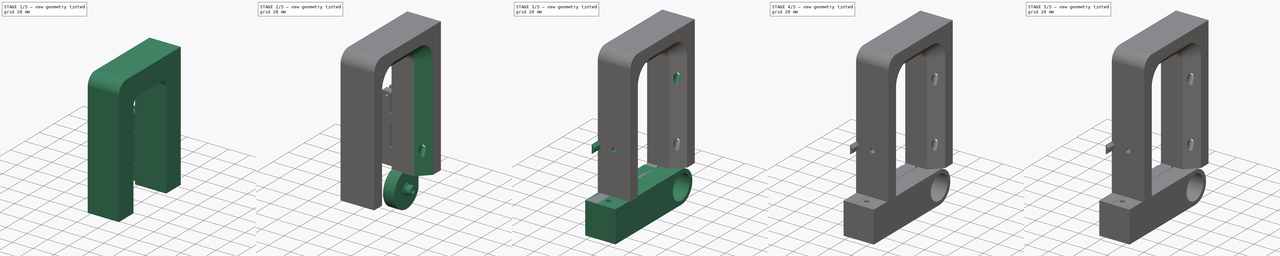
[diagram: build sequence overview — one tinted view per stage of 5, left to right]
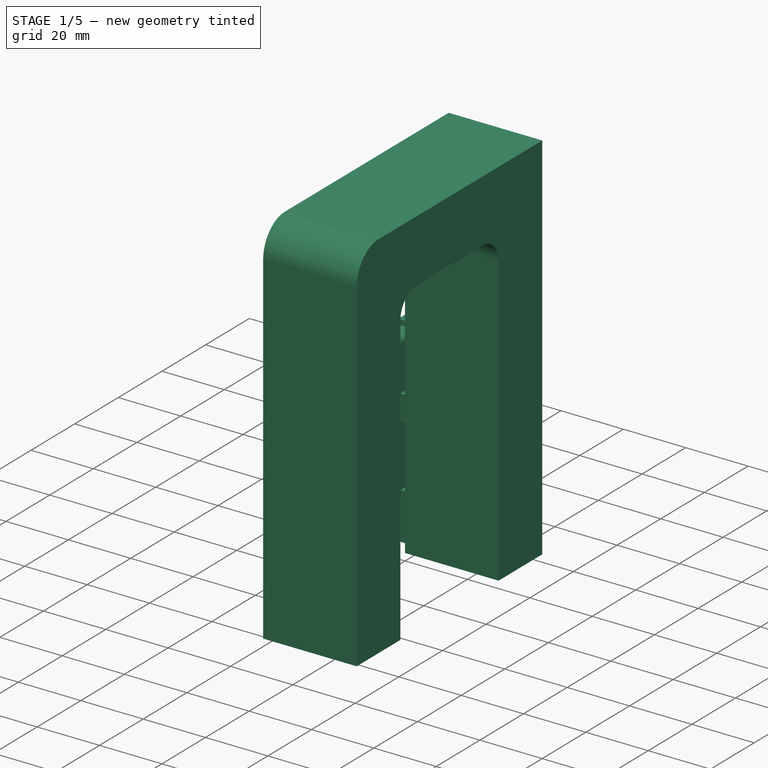
[diagram: stage 1 of 5 — iso view after this stage's code; geometry added in this stage tinted green]
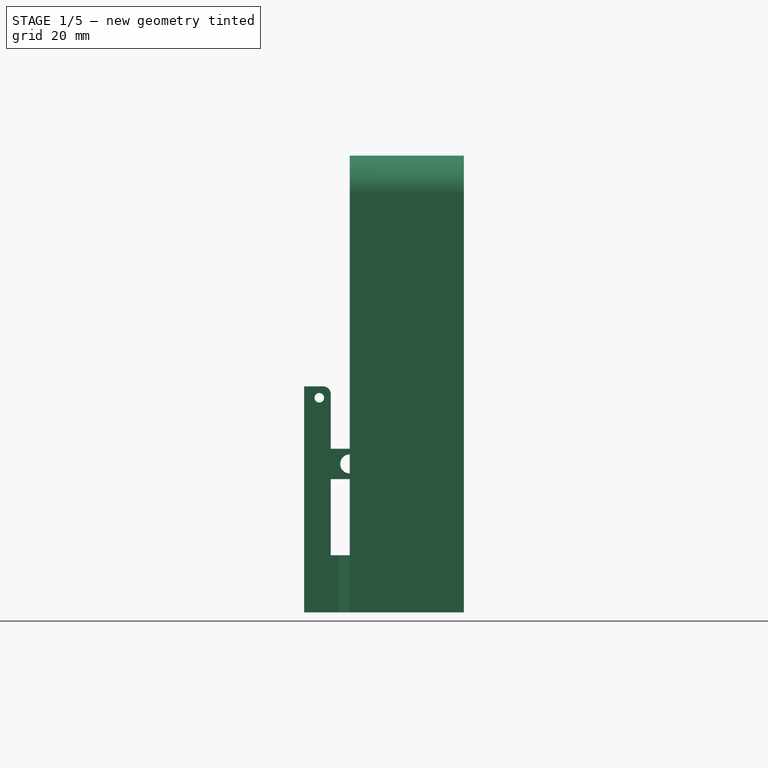
[diagram: stage 1 of 5 — front view after this stage's code; geometry added in this stage tinted green]
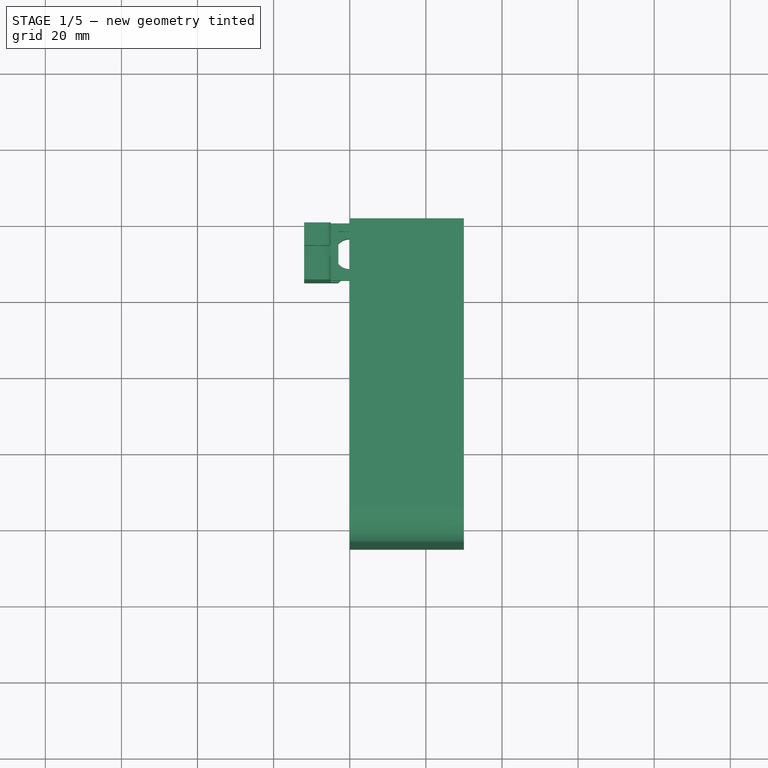
[diagram: stage 1 of 5 — top view after this stage's code; geometry added in this stage tinted green]
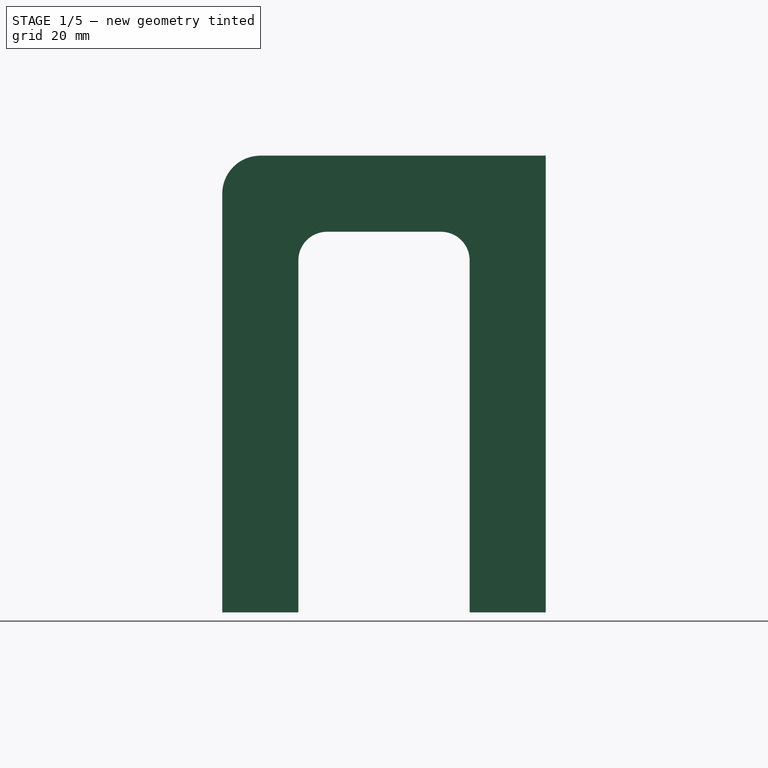
[diagram: stage 1 of 5 — right view after this stage's code; geometry added in this stage tinted green]
FCSTD DOCUMENT  (FreeCAD 0.21R33771 (Git))
Label: DropShot
License: All rights reserved
LicenseURL: http://en.wikipedia.org/wiki/All_rights_reserved
objects: Sketcher::SketchObject×15, PartDesign::Pad×11, PartDesign::SubtractiveCylinder×10, PartDesign::ShapeBinder×6, PartDesign::Body×6, PartDesign::Pocket×4, PartDesign::Chamfer×3, PartDesign::SubtractiveBox×3, App::Part×2, Spreadsheet::Sheet×1, PartDesign::SubShapeBinder×1
note: 90 computed .brp shape members not serialized (recipe doc carries the construction recipe); baked Part::Feature solids carry a one-line shape summary decoded from their .brp

FEATURE [Spreadsheet::Sheet] Spreadsheet  label="Values"
  cells = A2='ShotHeight; B2(ShotHeight)=100; A3='ShotWidth; B3(ShotWidth)=45; A4='HolderWidth; B4(HolderWidth)=30; A5='HolderHeight; B5(HolderHeight)=20
FEATURE [Sketcher::SketchObject] Sketch
  FullyConstrained = true
  MapMode = 5
  Placement = pos=(0,0,0) rot=(0.57735,0.57735,0.57735;2.0944rad)
  Support = -> [YZ_Plane001]
  expr: Constraints[15] = <<Values>>.ShotWidth
  expr: Constraints[16] = <<Values>>.ShotWidth + 2 * <<Values>>.HolderHeight
  expr: Constraints[17] = <<Values>>.HolderHeight
  expr: Constraints[18] = <<Values>>.HolderHeight
  expr: Constraints[19] = <<Values>>.ShotHeight
  expr: Constraints[32] = <<Values>>.ShotWidth + 2 * <<Values>>.HolderHeight - 10
  expr: Constraints[34] = <<Values>>.ShotWidth - 15
  sketch-geometry (14):
    g0: LineSegment StartX=-20 StartY=0 StartZ=0 EndX=0 EndY=0 EndZ=0
    g1: LineSegment StartX=0 StartY=0 StartZ=0 EndX=0 EndY=120 EndZ=0
    g2: LineSegment StartX=0 StartY=120 StartZ=0 EndX=-75 EndY=120 EndZ=0
    g3: LineSegment StartX=-85 StartY=110 StartZ=0 EndX=-85 EndY=0 EndZ=0
    g4: LineSegment StartX=-85 StartY=0 StartZ=0 EndX=-65 EndY=0 EndZ=0
    g5: LineSegment StartX=-65 StartY=0 StartZ=0 EndX=-65 EndY=92.5 EndZ=0
    g6: LineSegment StartX=-57.5 StartY=100 StartZ=0 EndX=-27.5 EndY=100 EndZ=0
    g7: LineSegment StartX=-20 StartY=92.5 StartZ=0 EndX=-20 EndY=0 EndZ=0
    g8: ArcOfCircle CenterX=-75 CenterY=110 CenterZ=0 NormalX=0 NormalY=0 NormalZ=1 AngleXU=0 Radius=10 StartAngle=1.5708 EndAngle=3.14159
    g9: GeomPoint X=-85 Y=120 Z=0
    g10: ArcOfCircle CenterX=-57.5 CenterY=92.5 CenterZ=0 NormalX=0 NormalY=0 NormalZ=1 AngleXU=0 Radius=7.5 StartAngle=1.5708 EndAngle=3.14159
    g11: GeomPoint X=-65 Y=100 Z=0
    g12: ArcOfCircle CenterX=-27.5 CenterY=92.5 CenterZ=0 NormalX=0 NormalY=0 NormalZ=1 AngleXU=0 Radius=7.5 StartAngle=-9e-16 EndAngle=1.5708
    g13: GeomPoint X=-20 Y=100 Z=0
  constraints (35):
    c: PointOnObject(g0,g-1)
    c: Coincident(g0,g-1)
    c: Coincident(g0,g1)
    c: PointOnObject(g1,g-2)
    c: Coincident(g1,g2)
    c: Horizontal(g2)
    c: PointOnObject(g3,g-1)
    c: Vertical(g3)
    c: Coincident(g3,g4)
    c: PointOnObject(g4,g-1)
    c: Coincident(g4,g5)
    c: Vertical(g5)
    c: Horizontal(g6)
    c: Coincident(g7,g0)
    c: Vertical(g7)
    c: DistanceX(g11,g13) = 45
    c: DistanceX(g9,g2) = 85
    c: DistanceX(g3,g4) = 20
    c: DistanceY(g13,g1) = 20
    c: DistanceY(g7,g13) = 100
    c: PointOnObject(g9,g2)
    c: PointOnObject(g9,g3)
    c: Tangent(g2,g8) = -1.5708
    c: Tangent(g3,g8) = -1.5708
    c: PointOnObject(g11,g5)
    c: PointOnObject(g11,g6)
    c: Tangent(g5,g10) = 1.5708
    c: Tangent(g6,g10) = 1.5708
    c: PointOnObject(g13,g6)
    c: PointOnObject(g13,g7)
    c: Tangent(g6,g12) = 1.5708
    c: Tangent(g7,g12) = 1.5708
    c: DistanceX(g8,g1) = 75
    c: Horizontal(g12,g10)
    c: DistanceX(g10,g12) = 30
FEATURE [PartDesign::Pad] Pad
  Direction = (1,-2e-16,3e-16)
  Length = 30
  Length2 = 10
  Placement = pos=(0,0,0) rot=(0.57735,0.57735,0.57735;2.0944rad)
  Profile = -> Sketch
  ReferenceAxis = -> Sketch [N_Axis]
  Type = 0
  expr: Length = <<Values>>.HolderWidth
FEATURE [Sketcher::SketchObject] Sketch009
  FullyConstrained = true
  MapMode = 5
  Placement = pos=(0,0,0) rot=(1,0,0;1.5708rad)
  Support = -> [XZ_Plane005]
  sketch-geometry (13):
    g0: LineSegment StartX=-12 StartY=59.38 StartZ=0 EndX=-12 EndY=0 EndZ=0
    g1: LineSegment StartX=-12 StartY=0 StartZ=0 EndX=0 EndY=0 EndZ=0
    g2: LineSegment StartX=0 StartY=0 StartZ=0 EndX=0 EndY=15 EndZ=0
    g3: LineSegment StartX=0 StartY=15 StartZ=0 EndX=-5 EndY=15 EndZ=0
    g4: LineSegment StartX=-5 StartY=15 StartZ=0 EndX=-5 EndY=35 EndZ=0
    g5: LineSegment StartX=-5 StartY=43 StartZ=0 EndX=-5 EndY=57.38 EndZ=0
    g6: LineSegment StartX=-7 StartY=59.38 StartZ=0 EndX=-12 EndY=59.38 EndZ=0
    g7: LineSegment StartX=-5 StartY=43 StartZ=0 EndX=-2.7e-15 EndY=43 EndZ=0
    g8: ArcOfCircle CenterX=0 CenterY=39 CenterZ=0 NormalX=0 NormalY=0 NormalZ=1 AngleXU=0 Radius=4 StartAngle=4.71239 EndAngle=7.85398
    g9: Circle CenterX=0 CenterY=39 CenterZ=0 NormalX=0 NormalY=0 NormalZ=1 AngleXU=0 Radius=2.5
    g10: Circle CenterX=-8 CenterY=56.38 CenterZ=0 NormalX=0 NormalY=0 NormalZ=1 AngleXU=0 Radius=1.25
    g11: ArcOfCircle CenterX=-7 CenterY=57.38 CenterZ=0 NormalX=0 NormalY=0 NormalZ=1 AngleXU=0 Radius=2 StartAngle=2.9e-15 EndAngle=1.5708
    g12: LineSegment StartX=-5 StartY=35 StartZ=0 EndX=-2.7e-15 EndY=35 EndZ=0
  constraints (37):
    c: Vertical(g0)
    c: Coincident(g0,g1)
    c: Horizontal(g1)
    c: Coincident(g1,g2)
    c: Vertical(g2)
    c: Coincident(g2,g3)
    c: Coincident(g3,g4)
    c: Vertical(g4)
    c: Vertical(g5)
    c: Coincident(g6,g0)
    c: Horizontal(g6)
    c: Horizontal(g3)
    c: Coincident(g7,g5)
    c: Horizontal(g7)
    c: Tangent(g8,g7) = 1.5708
    c: Vertical(g2,g8)
    c: Coincident(g9,g8)
    c: Diameter(g9) = 5
    c: Diameter(g10) = 2.5
    c: Tangent(g5,g11) = -1.5708
    c: Tangent(g6,g11) = -1.5708
    c: Vertical(g5,g4)
    c: DistanceX(g10,g5) = 3
    c: DistanceY(g10,g6) = 3
    c: Coincident(g12,g4)
    c: Coincident(g12,g8)
    c: Horizontal(g12)
    c: DistanceY(g3,g4) = 20
    c: DistanceY(g4,g5) = 8
    c: DistanceY(g5,g6) = 16.38
    c: DistanceX(g1,g1) = 12
    c: DistanceX(g0,g5) = 7
    c: Vertical(g7,g8)
    c: DistanceX(g0,g6) = 5
    c: Horizontal(g1,g-1)
    c: DistanceX(g1,g-1) = 0
    c: DistanceY(g2,g2) = 15
FEATURE [PartDesign::Pad] Pad007
  Direction = (0,-1,-2e-16)
  Length = 15
  Length2 = 10
  Placement = pos=(0,0,0) rot=(1,0,0;1.5708rad)
  Profile = -> Sketch009
  ReferenceAxis = -> Sketch009 [N_Axis]
  Type = 0
FEATURE [PartDesign::SubtractiveCylinder] Cylinder002
  Angle = 360
  AttacherType = Attacher::AttachEngine3D
  AttachmentOffset = pos=(0,-7.5,0) rot=(0,0,1;0rad)
  BaseFeature = -> Pad007
  FirstAngle = 0
  Height = 27
  MapMode = 5
  Placement = pos=(0,-7.5,0) rot=(0,0,1;0rad)
  Radius = 4
  SecondAngle = 0
  Support = -> [XY_Plane005]
FEATURE [PartDesign::Chamfer] Chamfer001
  Angle = 45
  Base = -> Cylinder002 [Edge24]
  BaseFeature = -> Cylinder002
  ChamferType = 1
  FlipDirection = false
  Placement = pos=(0,-7.5,0) rot=(0,0,1;0rad)
  Size = 3
  Size2 = 3
  SupportTransform = false
  UseAllEdges = false
FEATURE [PartDesign::SubtractiveBox] Box
  AttacherType = Attacher::AttachEngine3D
  AttachmentOffset = pos=(-12.1,34,-3) rot=(0,0,1;0rad)
  BaseFeature = -> Chamfer001
  Height = 10
  Length = 10
  MapMode = 5
  Placement = pos=(-3,-12.1,34) rot=(0.57735,0.57735,0.57735;2.0944rad)
  Support = -> [YZ_Plane005]
  Width = 10.2
FEATURE [PartDesign::SubtractiveCylinder] Cylinder003
  Angle = 360
  AttacherType = Attacher::AttachEngine3D
  AttachmentOffset = pos=(-8,56,6) rot=(0,0,1;0rad)
  BaseFeature = -> Box
  FirstAngle = 0
  Height = 3
  MapMode = 5
  Placement = pos=(-8,-6,56) rot=(1,0,0;1.5708rad)
  Radius = 7
  SecondAngle = 0
  Support = -> [XZ_Plane005]
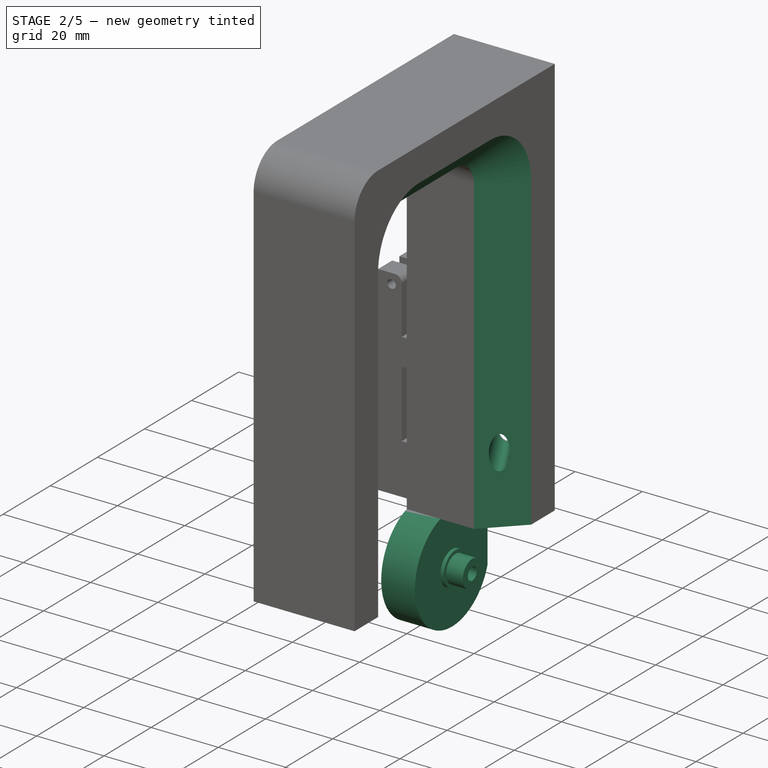
[diagram: stage 2 of 5 — iso view after this stage's code; geometry added in this stage tinted green]
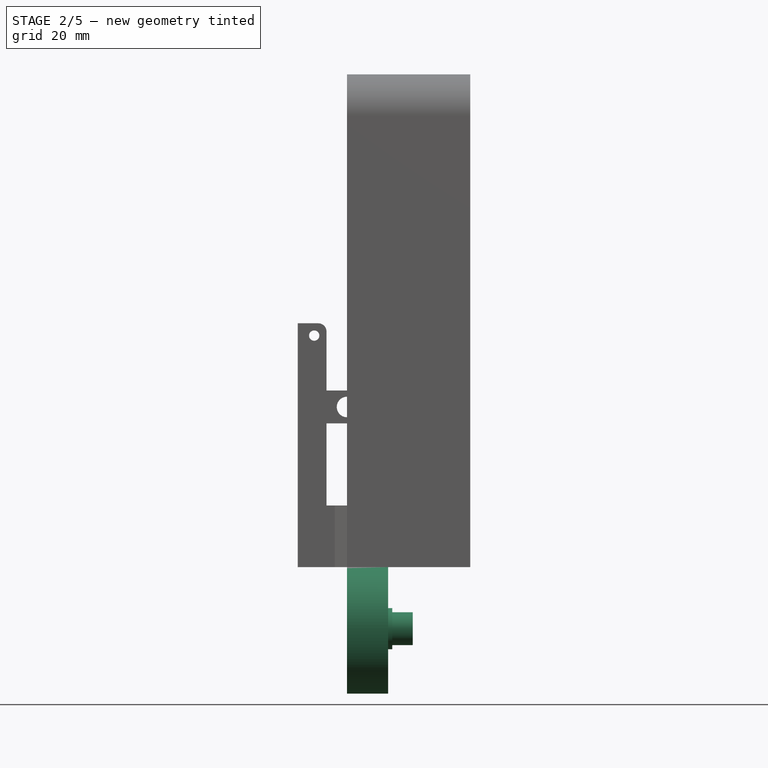
[diagram: stage 2 of 5 — front view after this stage's code; geometry added in this stage tinted green]
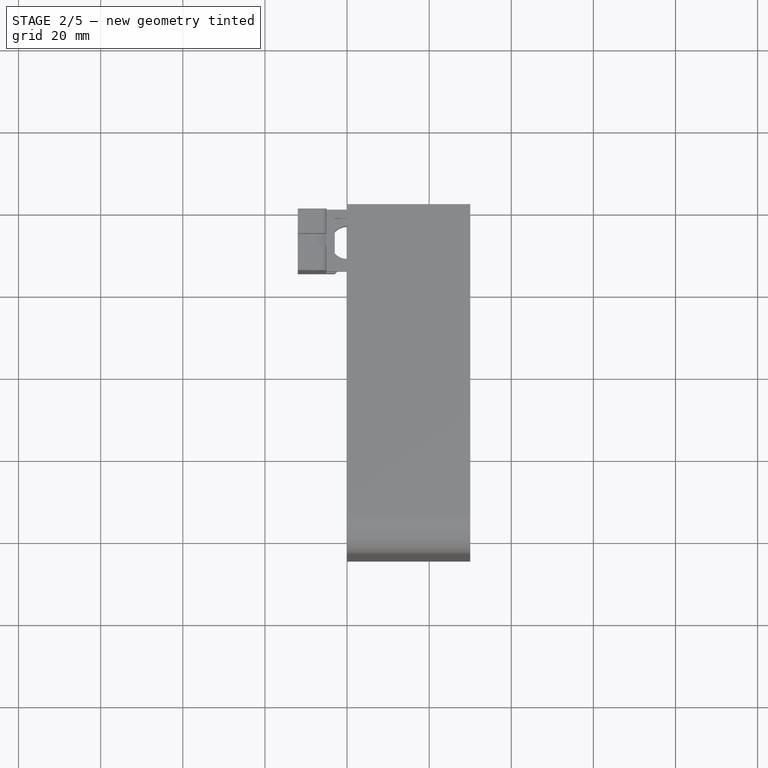
[diagram: stage 2 of 5 — top view after this stage's code; geometry added in this stage tinted green]
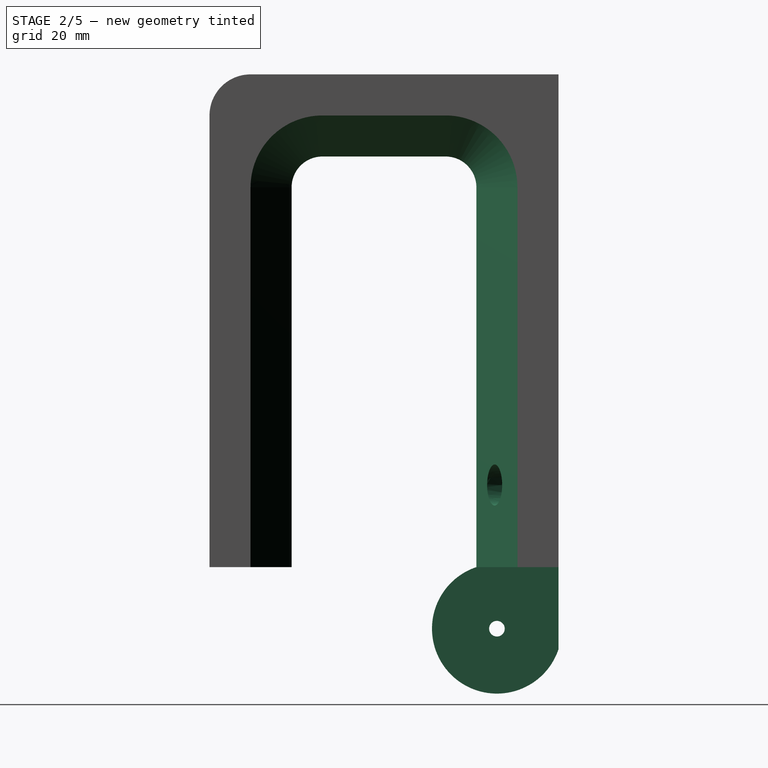
[diagram: stage 2 of 5 — right view after this stage's code; geometry added in this stage tinted green]
FEATURE [Sketcher::SketchObject] Sketch001
  FullyConstrained = true
  MapMode = 5
  Placement = pos=(0,0,0) rot=(0.57735,0.57735,0.57735;2.0944rad)
  Support = -> [YZ_Plane001]
  sketch-geometry (2):
    g0: Circle CenterX=-15 CenterY=-15 CenterZ=0 NormalX=0 NormalY=0 NormalZ=1 AngleXU=0 Radius=4
    g1: Circle CenterX=-15 CenterY=-15 CenterZ=0 NormalX=0 NormalY=0 NormalZ=1 AngleXU=0 Radius=11
  constraints (5):
    c: Diameter(g0) = 8
    c: Coincident(g1,g0)
    c: Diameter(g1) = 22
    c: DistanceX(g0,g-1) = 15
    c: DistanceY(g0,g-1) = 15
FEATURE [Sketcher::SketchObject] Sketch002
  ExternalGeometry = -> [Sketch001,Pad]
  FullyConstrained = true
  MapMode = 5
  Placement = pos=(0,0,0) rot=(0.57735,0.57735,0.57735;2.0944rad)
  Support = -> [YZ_Plane001]
  sketch-geometry (4):
    g0: Circle CenterX=-15 CenterY=-15 CenterZ=0 NormalX=0 NormalY=0 NormalZ=1 AngleXU=0 Radius=11
    g1: ArcOfCircle CenterX=-15 CenterY=-15 CenterZ=0 NormalX=0 NormalY=0 NormalZ=1 AngleXU=0 Radius=15.8114 StartAngle=1.89255 EndAngle=5.96143
    g2: LineSegment StartX=0 StartY=-20 StartZ=0 EndX=0 EndY=0 EndZ=0
    g3: LineSegment StartX=0 StartY=0 StartZ=0 EndX=-20 EndY=1.42e-14 EndZ=0
  constraints (9):
    c: Coincident(g0,g-3)
    c: Diameter(g0) = 22
    c: Coincident(g1,g0)
    c: Coincident(g1,g-5)
    c: PointOnObject(g1,g-2)
    c: Coincident(g2,g1)
    c: Coincident(g2,g-1)
    c: Coincident(g3,g2)
    c: Coincident(g3,g1)
FEATURE [PartDesign::Pad] Pad001
  BaseFeature = -> Pad
  Direction = (1,-2e-16,3e-16)
  Length = 10
  Length2 = 10
  Placement = pos=(0,0,0) rot=(0.57735,0.57735,0.57735;2.0944rad)
  Profile = -> Sketch002
  ReferenceAxis = -> Sketch002 [N_Axis]
  Type = 0
FEATURE [PartDesign::Pad] Pad002
  BaseFeature = -> Pad001
  Direction = (1,-2e-16,3e-16)
  Length = 16
  Length2 = 10
  Placement = pos=(0,0,0) rot=(0.57735,0.57735,0.57735;2.0944rad)
  Profile = -> Sketch001
  ReferenceAxis = -> Sketch001 [N_Axis]
  Type = 0
FEATURE [Sketcher::SketchObject] Sketch003
  ExternalGeometry = -> [Pad002]
  FullyConstrained = true
  MapMode = 5
  Placement = pos=(0,0,0) rot=(0.57735,0.57735,0.57735;2.0944rad)
  Support = -> [YZ_Plane001]
  sketch-geometry (1):
    g0: Circle CenterX=-15 CenterY=-15 CenterZ=0 NormalX=0 NormalY=0 NormalZ=1 AngleXU=0 Radius=5
  constraints (2):
    c: Coincident(g0,g-3)
    c: Diameter(g0) = 10
FEATURE [PartDesign::Pad] Pad003
  BaseFeature = -> Pad002
  Direction = (1,-2e-16,3e-16)
  Length = 11
  Length2 = 10
  Placement = pos=(0,0,0) rot=(0.57735,0.57735,0.57735;2.0944rad)
  Profile = -> Sketch003
  ReferenceAxis = -> Sketch003 [N_Axis]
  Type = 0
FEATURE [Sketcher::SketchObject] Sketch004
  ExternalGeometry = -> [Pad003]
  FullyConstrained = true
  MapMode = 5
  Placement = pos=(0,0,0) rot=(0.57735,0.57735,0.57735;2.0944rad)
  Support = -> [YZ_Plane001]
  sketch-geometry (1):
    g0: Circle CenterX=-15 CenterY=-15 CenterZ=0 NormalX=0 NormalY=0 NormalZ=1 AngleXU=0 Radius=1.9
  constraints (2):
    c: Coincident(g0,g-3)
    c: Diameter(g0) = 3.8
FEATURE [PartDesign::Pocket] Pocket
  BaseFeature = -> Pad003
  Direction = (-1,2e-16,-3e-16)
  Length = 20
  Length2 = 5
  Placement = pos=(0,0,0) rot=(0.57735,0.57735,0.57735;2.0944rad)
  Profile = -> Sketch004
  ReferenceAxis = -> Sketch004 [N_Axis]
  Reversed = true
  Type = 0
FEATURE [PartDesign::Chamfer] Chamfer
  Angle = 45
  Base = -> Pocket [Edge5]
  BaseFeature = -> Pocket
  ChamferType = 0
  FlipDirection = false
  Placement = pos=(0,0,0) rot=(0.57735,0.57735,0.57735;2.0944rad)
  Size = 10
  Size2 = 1
  SupportTransform = false
  UseAllEdges = false
FEATURE [PartDesign::SubtractiveCylinder] Cylinder
  Angle = 360
  AttacherType = Attacher::AttachEngine3D
  AttachmentOffset = pos=(6,20,12) rot=(0,0,1;0rad)
  BaseFeature = -> Chamfer
  FirstAngle = -60
  Height = 101
  MapMode = 5
  Placement = pos=(12,6,20) rot=(0.57735,0.57735,0.57735;2.0944rad)
  Radius = 5
  SecondAngle = 0
  Support = -> [YZ_Plane001]
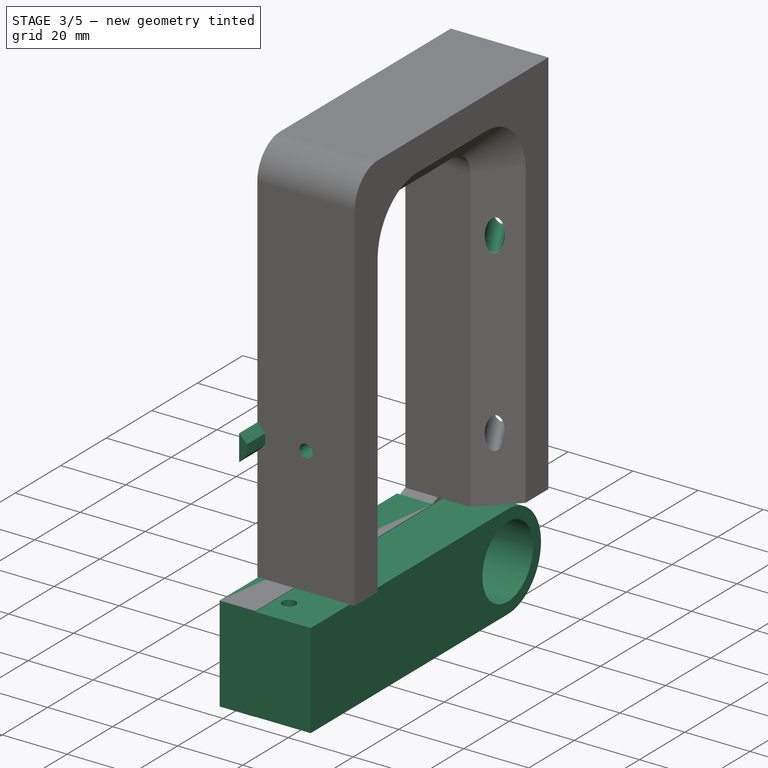
[diagram: stage 3 of 5 — iso view after this stage's code; geometry added in this stage tinted green]
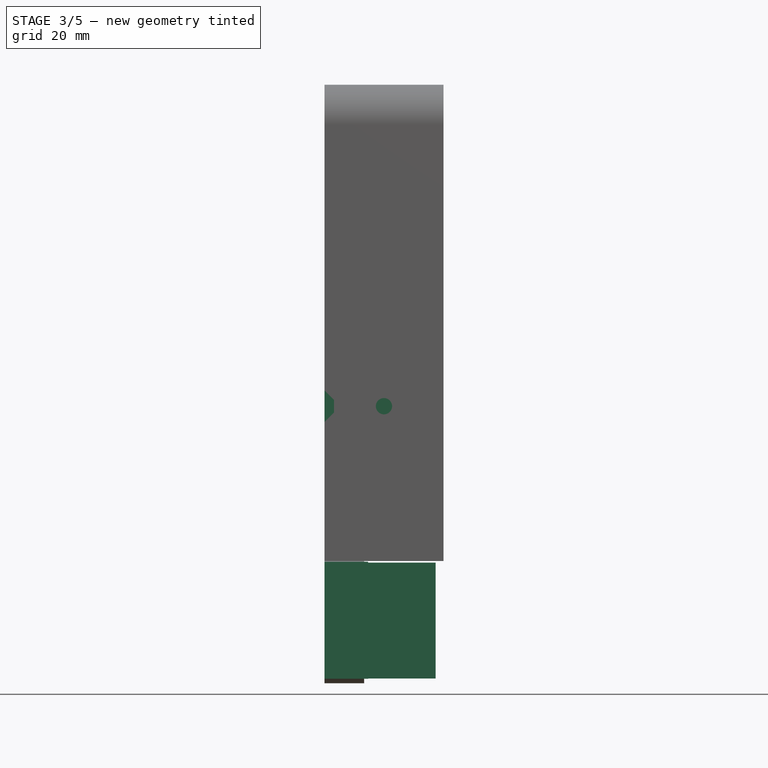
[diagram: stage 3 of 5 — front view after this stage's code; geometry added in this stage tinted green]
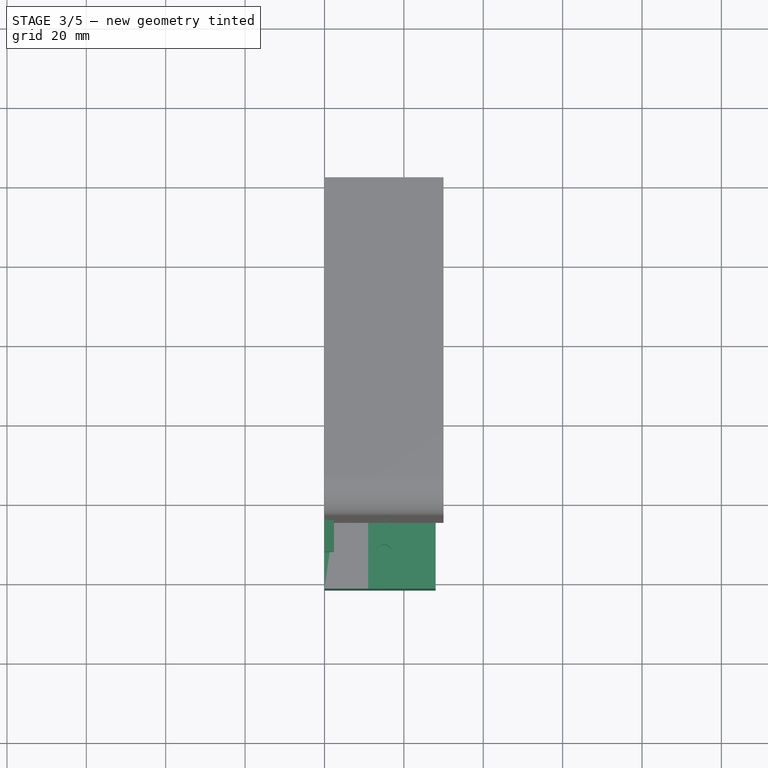
[diagram: stage 3 of 5 — top view after this stage's code; geometry added in this stage tinted green]
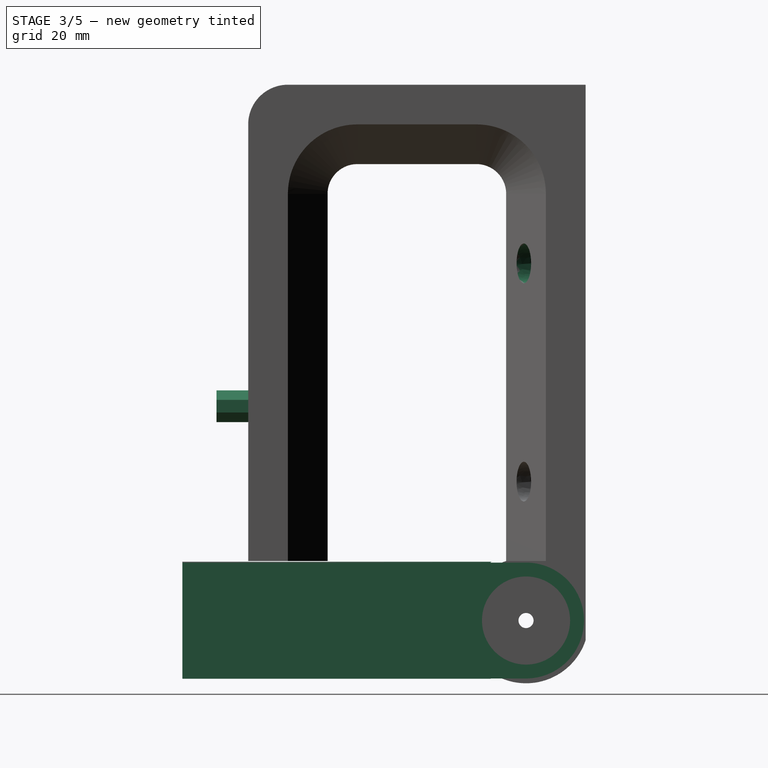
[diagram: stage 3 of 5 — right view after this stage's code; geometry added in this stage tinted green]
FEATURE [PartDesign::SubtractiveCylinder] Cylinder001
  Angle = 360
  AttacherType = Attacher::AttachEngine3D
  AttachmentOffset = pos=(6,75,12) rot=(0,0,1;0rad)
  BaseFeature = -> Cylinder
  FirstAngle = -60
  Height = 100
  MapMode = 5
  Placement = pos=(12,6,75) rot=(0.57735,0.57735,0.57735;2.0944rad)
  Radius = 5
  SecondAngle = 0
  Support = -> [YZ_Plane001]
FEATURE [PartDesign::ShapeBinder] ShapeBinder
  Placement = pos=(12,6,75) rot=(0.57735,0.57735,0.57735;2.0944rad)
  Support = -> [Cylinder001]
  TraceSupport = false
FEATURE [Sketcher::SketchObject] Sketch005
  AttachmentOffset = pos=(0,0,11) rot=(0,0,1;0rad)
  ExternalGeometry = -> [ShapeBinder]
  FullyConstrained = false
  MapMode = 5
  Placement = pos=(11,-2.4e-15,2.4e-15) rot=(0.57735,0.57735,0.57735;2.0944rad)
  Support = -> [YZ_Plane002]
  sketch-geometry (6):
    g0: LineSegment StartX=-15 StartY=-29.6 StartZ=0 EndX=-101.569 EndY=-29.6 EndZ=0
    g1: LineSegment StartX=-101.569 StartY=-29.6 StartZ=0 EndX=-101.569 EndY=-0.4 EndZ=0
    g2: LineSegment StartX=-101.569 StartY=-0.4 StartZ=0 EndX=-15 EndY=-0.4 EndZ=0
    g3: GeomPoint X=0 Y=-0.4 Z=0
    g4: Circle CenterX=-15 CenterY=-15 CenterZ=0 NormalX=0 NormalY=0 NormalZ=1 AngleXU=0 Radius=11
    g5: ArcOfCircle CenterX=-15 CenterY=-15 CenterZ=0 NormalX=0 NormalY=0 NormalZ=1 AngleXU=0 Radius=14.6 StartAngle=4.71239 EndAngle=7.85398
  constraints (13):
    c: Horizontal(g0)
    c: Coincident(g0,g1)
    c: Vertical(g1)
    c: Coincident(g1,g2)
    c: Horizontal(g2)
    c: DistanceY(g3,g-1) = 0.4
    c: Vertical(g3,g-1)
    c: PointOnObject(g3,g2)
    c: Coincident(g4,g-3)
    c: Diameter(g4) = 22
    c: Coincident(g5,g4)
    c: Tangent(g5,g2) = 1.5708
    c: Tangent(g5,g0) = 1.5708
FEATURE [PartDesign::Pad] Pad004
  Direction = (1,-2e-16,3e-16)
  Length = 17
  Length2 = 10
  Placement = pos=(0,0,0) rot=(1,1,1;2.0944rad)
  Profile = -> Sketch005
  ReferenceAxis = -> Sketch005 [N_Axis]
  Type = 0
FEATURE [Sketcher::SketchObject] Sketch006
  ExternalGeometry = -> [ShapeBinder,Pad004]
  FullyConstrained = false
  MapMode = 5
  Placement = pos=(0,0,0) rot=(0.57735,0.57735,0.57735;2.0944rad)
  Support = -> [YZ_Plane002]
  sketch-geometry (4):
    g0: ArcOfCircle CenterX=-15 CenterY=-15 CenterZ=0 NormalX=0 NormalY=0 NormalZ=1 AngleXU=0 Radius=17.15 StartAngle=2.10047 EndAngle=4.1679
    g1: LineSegment StartX=-23.665 StartY=-0.2 StartZ=0 EndX=-101.569 EndY=-0.2 EndZ=0
    g2: LineSegment StartX=-101.569 StartY=-0.2 StartZ=0 EndX=-101.569 EndY=-29.67 EndZ=0
    g3: LineSegment StartX=-101.569 StartY=-29.67 StartZ=0 EndX=-23.8833 EndY=-29.67 EndZ=0
  constraints (11):
    c: Coincident(g0,g-3)
    c: DistanceY(g0,g-1) = 0.2
    c: Coincident(g0,g1)
    c: Coincident(g1,g2)
    c: Vertical(g2)
    c: Coincident(g2,g3)
    c: Horizontal(g3)
    c: Horizontal(g1)
    c: Coincident(g3,g0)
    c: Diameter(g0) = 34.3
    c: DistanceY(g2,g1) = 29.47
FEATURE [PartDesign::Pad] Pad005
  BaseFeature = -> Pad004
  Direction = (1,-2e-16,3e-16)
  Length = 11
  Length2 = 10
  Placement = pos=(0,0,0) rot=(1,1,1;2.0944rad)
  Profile = -> Sketch006
  ReferenceAxis = -> Sketch006 [N_Axis]
  Type = 0
FEATURE [Sketcher::SketchObject] Sketch007
  ExternalGeometry = -> [ShapeBinder]
  FullyConstrained = true
  MapMode = 5
  Placement = pos=(0,0,0) rot=(0.57735,0.57735,0.57735;2.0944rad)
  Support = -> [YZ_Plane002]
  sketch-geometry (1):
    g0: Circle CenterX=-15 CenterY=-15 CenterZ=0 NormalX=0 NormalY=0 NormalZ=1 AngleXU=0 Radius=11.1
  constraints (2):
    c: Coincident(g0,g-3)
    c: Diameter(g0) = 22.2
FEATURE [PartDesign::Pocket] Pocket001
  BaseFeature = -> Pad005
  Direction = (-1,2e-16,-3e-16)
  Length = 35
  Length2 = 5
  Placement = pos=(0,0,0) rot=(1,1,1;2.0944rad)
  Profile = -> Sketch007
  ReferenceAxis = -> Sketch007 [N_Axis]
  Reversed = true
  Type = 0
FEATURE [PartDesign::Body] Body006  label="RightArm"
  Group = -> [Sketch012,ShapeBinder003,ShapeBinder004,Pad010,Cylinder008,Cylinder009]
  Origin = -> Origin008
  Tip = -> Cylinder009
FEATURE [App::Part] Part001  label="Latch"
  Group = -> [Body003,Body004,Body005,Body006]
  Origin = -> Origin004
  Placement = pos=(15,-85,0) rot=(0,0,1;0rad)
FEATURE [Sketcher::SketchObject] Sketch013
  AttachmentOffset = pos=(0,0,85) rot=(0,0,1;0rad)
  FullyConstrained = true
  MapMode = 5
  Placement = pos=(0,-85,-1.89e-14) rot=(1,0,0;1.5708rad)
  Support = -> [XZ_Plane001]
  sketch-geometry (4):
    g0: LineSegment StartX=0 StartY=43 StartZ=0 EndX=0 EndY=35 EndZ=0
    g1: LineSegment StartX=2.4 StartY=37.4 StartZ=0 EndX=2.4 EndY=40.6 EndZ=0
    g2: LineSegment StartX=2.4 StartY=40.6 StartZ=0 EndX=0 EndY=43 EndZ=0
    g3: LineSegment StartX=2.4 StartY=37.4 StartZ=0 EndX=0 EndY=35 EndZ=0
  constraints (12):
    c: PointOnObject(g0,g-2)
    c: Vertical(g0)
    c: DistanceY(g-1,g0) = 35
    c: Vertical(g1)
    c: Coincident(g2,g1)
    c: Coincident(g2,g0)
    c: Coincident(g3,g1)
    c: Coincident(g3,g0)
    c: DistanceY(g0,g0) = 8
    c: DistanceX(g0,g1) = 2.4
    c: Angle(g3,g0) = 0.785398
    c: Angle(g0,g2) = 0.785398
FEATURE [PartDesign::Pad] Pad011
  BaseFeature = -> Cylinder001
  Direction = (0,-1,-2e-16)
  Length = 8
  Length2 = 10
  Placement = pos=(12,6,75) rot=(0.57735,0.57735,0.57735;2.0944rad)
  Profile = -> Sketch013
  ReferenceAxis = -> Sketch013 [N_Axis]
  Type = 0
FEATURE [Sketcher::SketchObject] Sketch014
  AttachmentOffset = pos=(0,0,108) rot=(0,0,1;0rad)
  FullyConstrained = false
  MapMode = 5
  Placement = pos=(0,-108,-2.4e-14) rot=(1,0,0;1.5708rad)
  Support = -> [XZ_Plane001]
  sketch-geometry (2):
    g0: Circle CenterX=14.9897 CenterY=39.0014 CenterZ=0 NormalX=0 NormalY=0 NormalZ=1 AngleXU=0 Radius=2.5
    g1: Circle CenterX=14.9897 CenterY=39.0014 CenterZ=0 NormalX=0 NormalY=0 NormalZ=1 AngleXU=0 Radius=2.05
  constraints (3):
    c: Diameter(g0) = 5
    c: Coincident(g1,g0)
    c: Diameter(g1) = 4.1
FEATURE [PartDesign::Pocket] Pocket002
  BaseFeature = -> Pad011
  Direction = (0,1,2e-16)
  Length = 31
  Length2 = 5
  Placement = pos=(12,6,75) rot=(0.57735,0.57735,0.57735;2.0944rad)
  Profile = -> Sketch014
  ReferenceAxis = -> Sketch014 [N_Axis]
  Type = 0
FEATURE [PartDesign::Body] Body  label="Top Wall"
  Group = -> [Sketch,Pad,Sketch001,Sketch002,Pad001,Pad002,Sketch003,Pad003,Sketch004,Pocket,Chamfer,Cylinder,Cylinder001,Sketch013,Pad011,Sketch014,Pocket002]
  Origin = -> Origin001
  Tip = -> Pocket002
FEATURE [PartDesign::ShapeBinder] ShapeBinder005
  Support = -> [Body003]
  TraceSupport = false
FEATURE [PartDesign::SubShapeBinder] Binder
  BindCopyOnChange = 0
  BindMode = 0
  ClaimChildren = false
  Context = -> Part [Body001.Binder.]
  Fuse = false
  MakeFace = true
  OffsetFill = false
  OffsetIntersection = false
  OffsetJoinType = 0
  OffsetOpenResult = false
  PartialLoad = false
  Placement = pos=(15,-85,0) rot=(0,0,1;0rad)
  Relative = true
  Support = -> [ShapeBinder005]
  _Version = 2
FEATURE [Sketcher::SketchObject] Sketch015
  ExternalGeometry = -> [Binder]
  FullyConstrained = true
  MapMode = 5
  Support = -> [XY_Plane002]
  sketch-geometry (1):
    g0: Circle CenterX=15 CenterY=-92.5 CenterZ=0 NormalX=0 NormalY=0 NormalZ=1 AngleXU=0 Radius=2.05
  constraints (2):
    c: Coincident(g0,g-3)
    c: Diameter(g0) = 4.1
FEATURE [PartDesign::Pocket] Pocket003
  BaseFeature = -> Pocket001
  Direction = (0,0,-1)
  Length = 5
  Length2 = 5
  Placement = pos=(0,0,0) rot=(1,1,1;2.0944rad)
  Profile = -> Sketch015
  ReferenceAxis = -> Sketch015 [N_Axis]
  Type = 0
FEATURE [PartDesign::Body] Body001  label="Bottom Latch"
  Group = -> [ShapeBinder,Sketch005,Pad004,Sketch006,Pad005,Sketch007,Pocket001,Binder,Sketch015,Pocket003]
  Origin = -> Origin002
  Tip = -> Pocket003
FEATURE [App::Part] Part
  Group = -> [Body,Body001]
  Origin = -> Origin
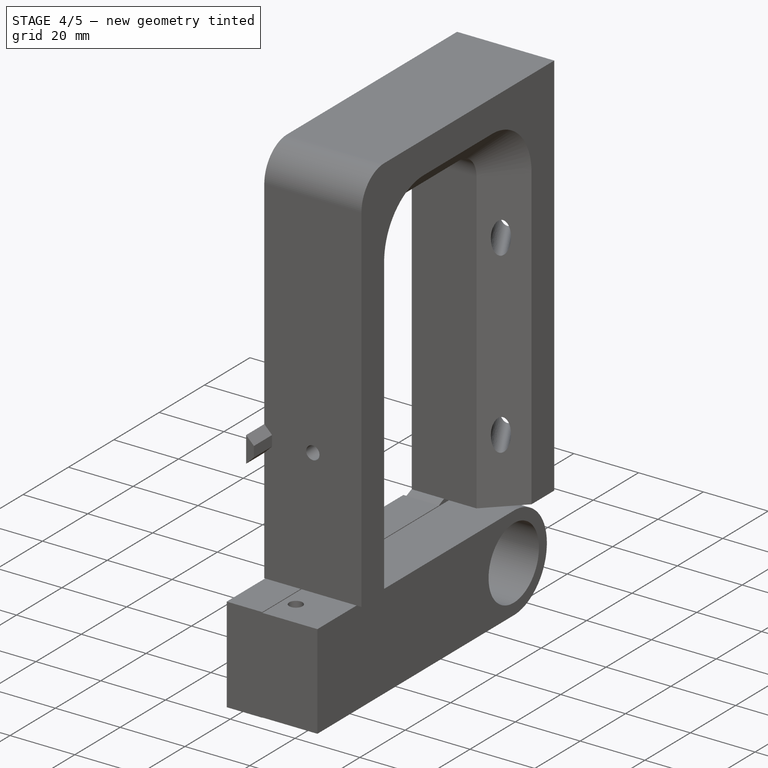
[diagram: stage 4 of 5 — iso view after this stage's code; geometry added in this stage tinted green]
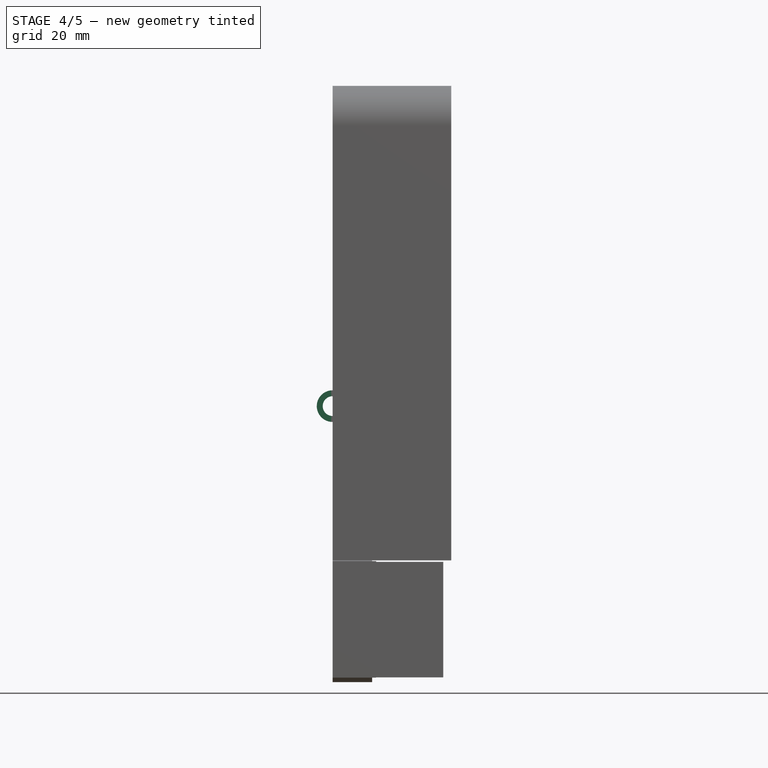
[diagram: stage 4 of 5 — front view after this stage's code; geometry added in this stage tinted green]
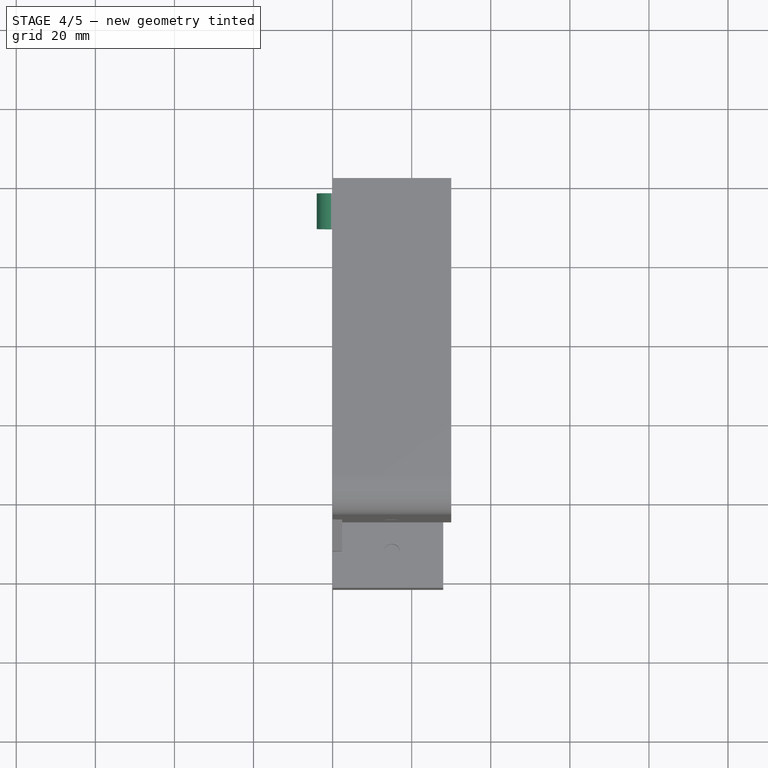
[diagram: stage 4 of 5 — top view after this stage's code; geometry added in this stage tinted green]
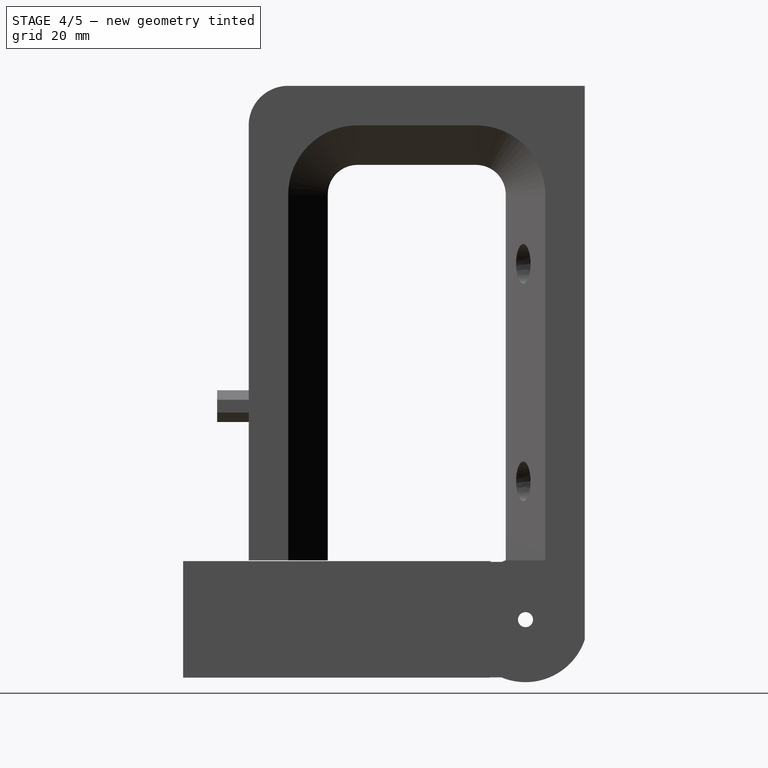
[diagram: stage 4 of 5 — right view after this stage's code; geometry added in this stage tinted green]
FEATURE [PartDesign::Body] Body003  label="LeftPall"
  Group = -> [Sketch009,Pad007,Cylinder002,Chamfer001,Box,Cylinder003]
  Origin = -> Origin005
  Tip = -> Cylinder003
FEATURE [PartDesign::ShapeBinder] ShapeBinder001
  Support = -> [Body003]
  TraceSupport = false
FEATURE [Sketcher::SketchObject] Sketch010
  ExternalGeometry = -> [ShapeBinder001]
  FullyConstrained = true
  MapMode = 5
  Placement = pos=(0,0,0) rot=(1,0,0;1.5708rad)
  Support = -> [XZ_Plane006]
  sketch-geometry (13):
    g0: LineSegment StartX=-7e-16 StartY=35 StartZ=0 EndX=5 EndY=35 EndZ=0
    g1: LineSegment StartX=5 StartY=35 StartZ=0 EndX=5 EndY=15 EndZ=0
    g2: LineSegment StartX=5 StartY=15 StartZ=0 EndX=0 EndY=15 EndZ=0
    g3: LineSegment StartX=0 StartY=15 StartZ=0 EndX=0 EndY=0 EndZ=0
    g4: LineSegment StartX=0 StartY=0 StartZ=0 EndX=12 EndY=0 EndZ=0
    g5: LineSegment StartX=12 StartY=0 StartZ=0 EndX=12 EndY=59.38 EndZ=0
    g6: LineSegment StartX=12 StartY=59.38 StartZ=0 EndX=7 EndY=59.38 EndZ=0
    g7: LineSegment StartX=5 StartY=57.38 StartZ=0 EndX=5 EndY=43 EndZ=0
    g8: LineSegment StartX=5 StartY=43 StartZ=0 EndX=0 EndY=43 EndZ=0
    g9: ArcOfCircle CenterX=0 CenterY=39 CenterZ=0 NormalX=0 NormalY=0 NormalZ=1 AngleXU=0 Radius=4 StartAngle=1.5708 EndAngle=4.71239
    g10: Circle CenterX=0 CenterY=39 CenterZ=0 NormalX=0 NormalY=0 NormalZ=1 AngleXU=0 Radius=2.5
    g11: Circle CenterX=8 CenterY=56.38 CenterZ=0 NormalX=0 NormalY=0 NormalZ=1 AngleXU=0 Radius=1.25
    g12: ArcOfCircle CenterX=7 CenterY=57.38 CenterZ=0 NormalX=0 NormalY=0 NormalZ=1 AngleXU=0 Radius=2 StartAngle=1.5708 EndAngle=3.14159
  constraints (43):
    c: Horizontal(g0)
    c: Coincident(g0,g1)
    c: Vertical(g1)
    c: Coincident(g1,g2)
    c: Horizontal(g2)
    c: Coincident(g2,g3)
    c: PointOnObject(g3,g-1)
    c: Vertical(g3)
    c: Coincident(g3,g4)
    c: PointOnObject(g4,g-1)
    c: Coincident(g4,g5)
    c: Vertical(g5)
    c: Coincident(g5,g6)
    c: Horizontal(g6)
    c: Vertical(g7)
    c: Coincident(g7,g8)
    c: Horizontal(g8)
    c: Horizontal(g-7,g5)
    c: Horizontal(g-3,g8)
    c: Horizontal(g-4,g0)
    c: Horizontal(g-6,g2)
    c: Coincident(g10,g9)
    c: Diameter(g10) = 5
    c: Horizontal(g-10,g11)
    c: Tangent(g6,g12) = -1.5708
    c: Tangent(g7,g12) = -1.5708
    c: Horizontal(g-8,g7)
    c: DistanceX(g-9,g-8) = 7
    c: DistanceX(g7,g5) = 7
    c: DistanceX(g-1,g3) = 0
    c: Vertical(g0,g7)
    c: Tangent(g9,g8) = -1.5708
    c: Tangent(g9,g0) = -1.5708
    c: DistanceX(g-8,g-11) = 5
    c: DistanceX(g9,g7) = 5
    c: DistanceX(g-12,g-6) = 5
    c: DistanceX(g2,g1) = 5
    c: DistanceX(g-13,g-1) = 1.8e-15
    c: DistanceX(g-9,g-10) = 4
    c: DistanceX(g11,g5) = 4
    c: Diameter(g-10) = 2.5
    c: Diameter(g11) = 2.5
    c: DistanceX(g-9,g-13) = 12
FEATURE [PartDesign::Pad] Pad008
  Direction = (0,-1,-2e-16)
  Length = 15
  Length2 = 10
  Placement = pos=(0,0,0) rot=(1,0,0;1.5708rad)
  Profile = -> Sketch010
  ReferenceAxis = -> Sketch010 [N_Axis]
  Type = 0
FEATURE [PartDesign::SubtractiveBox] Box001
  AttacherType = Attacher::AttachEngine3D
  AttachmentOffset = pos=(-6.5,-2.5,34) rot=(0,0,1;0rad)
  BaseFeature = -> Pad008
  Height = 10
  Length = 11
  MapMode = 5
  Placement = pos=(-6.5,-2.5,34) rot=(0,0,1;0rad)
  Support = -> [XY_Plane006]
  Width = 10
FEATURE [PartDesign::SubtractiveBox] Box002
  AttacherType = Attacher::AttachEngine3D
  AttachmentOffset = pos=(-5.5,-21.5,34) rot=(0,0,1;0rad)
  BaseFeature = -> Box001
  Height = 10
  Length = 10
  MapMode = 5
  Placement = pos=(-5.5,-21.5,34) rot=(0,0,1;0rad)
  Support = -> [XY_Plane006]
  Width = 10
FEATURE [PartDesign::Chamfer] Chamfer002
  Angle = 45
  Base = -> Box002 [Edge25]
  BaseFeature = -> Box002
  ChamferType = 0
  FlipDirection = false
  Placement = pos=(-5.5,-21.5,34) rot=(0,0,1;0rad)
  Size = 3
  Size2 = 1
  SupportTransform = false
  UseAllEdges = false
FEATURE [PartDesign::SubtractiveCylinder] Cylinder004
  Angle = 360
  AttacherType = Attacher::AttachEngine3D
  AttachmentOffset = pos=(8,56,6) rot=(0,0,1;0rad)
  BaseFeature = -> Chamfer002
  FirstAngle = 0
  Height = 3
  MapMode = 5
  Placement = pos=(8,-6,56) rot=(1,0,0;1.5708rad)
  Radius = 7
  SecondAngle = 0
  Support = -> [XZ_Plane006]
FEATURE [PartDesign::SubtractiveCylinder] Cylinder005
  Angle = 360
  AttacherType = Attacher::AttachEngine3D
  AttachmentOffset = pos=(0,-7.5,0) rot=(0,0,1;0rad)
  BaseFeature = -> Cylinder004
  FirstAngle = 0
  Height = 31
  MapMode = 5
  Placement = pos=(0,-7.5,0) rot=(0,0,1;0rad)
  Radius = 4
  SecondAngle = 0
  Support = -> [XY_Plane005]
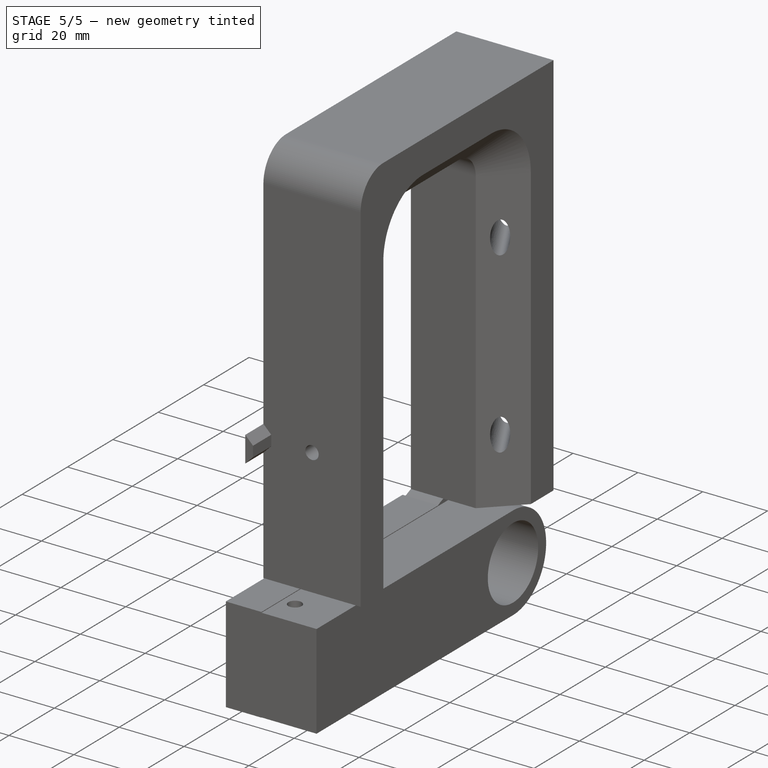
[diagram: stage 5 of 5 — iso view after this stage's code; geometry added in this stage tinted green]
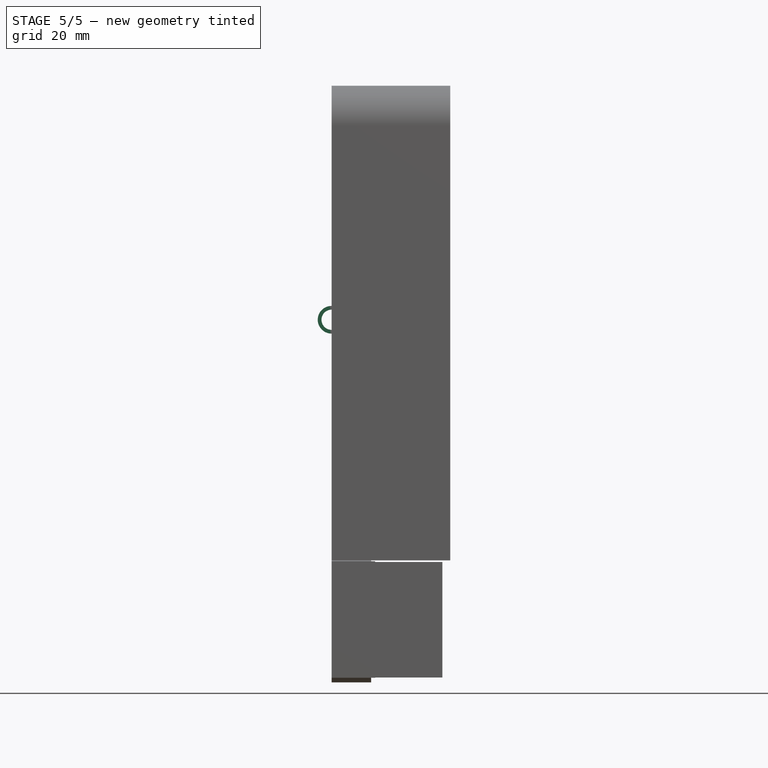
[diagram: stage 5 of 5 — front view after this stage's code; geometry added in this stage tinted green]
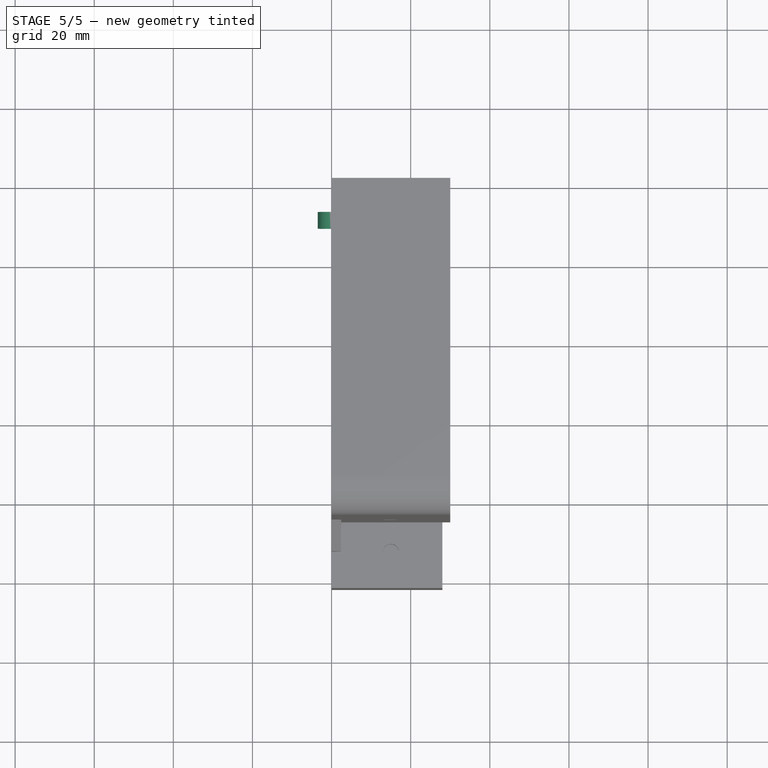
[diagram: stage 5 of 5 — top view after this stage's code; geometry added in this stage tinted green]
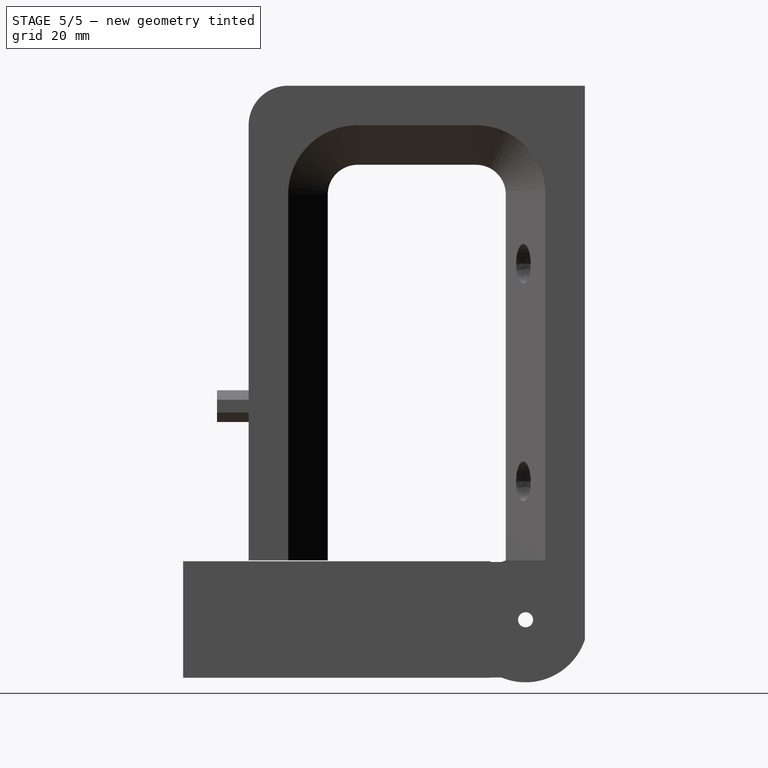
[diagram: stage 5 of 5 — right view after this stage's code; geometry added in this stage tinted green]
FEATURE [PartDesign::Body] Body004  label="RightPall"
  Group = -> [Sketch010,ShapeBinder001,Pad008,Box001,Box002,Chamfer002,Cylinder004,Cylinder005]
  Origin = -> Origin006
  Tip = -> Cylinder005
FEATURE [PartDesign::ShapeBinder] ShapeBinder002
  Support = -> [Body003]
  TraceSupport = false
FEATURE [Sketcher::SketchObject] Sketch011
  AttachmentOffset = pos=(0,0,3.2) rot=(0,0,1;0rad)
  ExternalGeometry = -> [ShapeBinder002]
  FullyConstrained = false
  MapMode = 5
  Placement = pos=(0,-3.2,-7e-16) rot=(1,0,0;1.5708rad)
  Support = -> [XZ_Plane007]
  sketch-geometry (6):
    g0: Circle CenterX=-8 CenterY=56.38 CenterZ=0 NormalX=0 NormalY=0 NormalZ=1 AngleXU=0 Radius=2.5
    g1: Circle CenterX=0 CenterY=60.8338 CenterZ=0 NormalX=0 NormalY=0 NormalZ=1 AngleXU=0 Radius=2.5
    g2: ArcOfCircle CenterX=0 CenterY=60.8338 CenterZ=0 NormalX=0 NormalY=0 NormalZ=1 AngleXU=0 Radius=3.5 StartAngle=4.48131 EndAngle=7.98927
    g3: ArcOfCircle CenterX=-8 CenterY=56.38 CenterZ=0 NormalX=0 NormalY=0 NormalZ=1 AngleXU=0 Radius=3.5 StartAngle=2.05567 EndAngle=6.00104
    g4: LineSegment StartX=-9.63132 StartY=59.4766 StartZ=0 EndX=-0.47207 EndY=64.3018 EndZ=0
    g5: LineSegment StartX=-4.63839 StartY=55.4055 StartZ=0 EndX=-0.801584 EndY=57.4268 EndZ=0
  constraints (13):
    c: Coincident(g0,g-3)
    c: Diameter(g0) = 5
    c: PointOnObject(g1,g-2)
    c: Diameter(g1) = 5
    c: Coincident(g2,g1)
    c: Coincident(g3,g0)
    c: Coincident(g4,g2)
    c: Coincident(g5,g3)
    c: Coincident(g5,g2)
    c: Diameter(g2) = 7
    c: Diameter(g3) = 7
    c: Parallel(g4,g5)
    c: Tangent(g4,g3) = 1.5708
FEATURE [PartDesign::Pad] Pad009
  Direction = (0,-1,2e-16)
  Length = 5.6
  Length2 = 10
  Placement = pos=(0,0,0) rot=(1,0,0;1.5708rad)
  Profile = -> Sketch011
  ReferenceAxis = -> Sketch011 [N_Axis]
  Type = 0
FEATURE [PartDesign::SubtractiveCylinder] Cylinder006
  Angle = 360
  AttacherType = Attacher::AttachEngine3D
  AttachmentOffset = pos=(-8,56,-1.8) rot=(0,0,1;0rad)
  BaseFeature = -> Pad009
  FirstAngle = 0
  Height = 8
  MapMode = 5
  Placement = pos=(-8,1.8,56) rot=(1,0,0;1.5708rad)
  Radius = 4
  SecondAngle = 0
  Support = -> [XZ_Plane006]
FEATURE [PartDesign::SubtractiveCylinder] Cylinder007
  Angle = 360
  AttacherType = Attacher::AttachEngine3D
  AttachmentOffset = pos=(0,61,7.4) rot=(0,0,1;0rad)
  BaseFeature = -> Cylinder006
  FirstAngle = 0
  Height = 10
  MapMode = 5
  Placement = pos=(0,-7.4,61) rot=(1,0,0;1.5708rad)
  Radius = 5
  SecondAngle = 0
  Support = -> [XZ_Plane006]
FEATURE [PartDesign::Body] Body005  label="LeftArm"
  Group = -> [ShapeBinder002,Sketch011,Pad009,Cylinder006,Cylinder007]
  Origin = -> Origin007
  Tip = -> Cylinder007
FEATURE [PartDesign::ShapeBinder] ShapeBinder003
  Support = -> [Body005]
  TraceSupport = false
FEATURE [PartDesign::ShapeBinder] ShapeBinder004
  Support = -> [Body004]
  TraceSupport = false
FEATURE [Sketcher::SketchObject] Sketch012
  AttachmentOffset = pos=(0,0,6.2) rot=(0,0,1;0rad)
  ExternalGeometry = -> [ShapeBinder004,ShapeBinder003]
  FullyConstrained = false
  MapMode = 5
  Placement = pos=(0,-6.2,-1.4e-15) rot=(1,0,0;1.5708rad)
  Support = -> [XZ_Plane008]
  sketch-geometry (6):
    g0: Circle CenterX=8 CenterY=56.38 CenterZ=0 NormalX=0 NormalY=0 NormalZ=1 AngleXU=0 Radius=2.55
    g1: Circle CenterX=0 CenterY=60.8338 CenterZ=0 NormalX=0 NormalY=0 NormalZ=1 AngleXU=0 Radius=2.55
    g2: ArcOfCircle CenterX=8 CenterY=56.38 CenterZ=0 NormalX=0 NormalY=0 NormalZ=1 AngleXU=0 Radius=3.5 StartAngle=3.65691 EndAngle=7.34599
    g3: ArcOfCircle CenterX=0 CenterY=60.8338 CenterZ=0 NormalX=0 NormalY=0 NormalZ=1 AngleXU=0 Radius=3.5 StartAngle=1.06281 EndAngle=4.86963
    g4: LineSegment StartX=1.70248 StartY=63.8918 StartZ=0 EndX=9.70248 EndY=59.438 EndZ=0
    g5: LineSegment StartX=0.548094 StartY=57.377 StartZ=0 EndX=4.95453 EndY=54.6552 EndZ=0
  constraints (12):
    c: Coincident(g0,g-3)
    c: Coincident(g1,g-4)
    c: Diameter(g1) = 5.1
    c: Diameter(g0) = 5.1
    c: Coincident(g2,g0)
    c: Coincident(g3,g1)
    c: Diameter(g3) = 7
    c: Diameter(g2) = 7
    c: Tangent(g4,g3) = 1.5708
    c: Tangent(g4,g2) = 1.5708
    c: Coincident(g5,g3)
    c: Coincident(g5,g2)
FEATURE [PartDesign::Pad] Pad010
  Direction = (0,-1,2e-16)
  Length = 5.6
  Length2 = 10
  Placement = pos=(0,0,0) rot=(1,0,0;1.5708rad)
  Profile = -> Sketch012
  ReferenceAxis = -> Sketch012 [N_Axis]
  Type = 0
FEATURE [PartDesign::SubtractiveCylinder] Cylinder008
  Angle = 360
  AttacherType = Attacher::AttachEngine3D
  AttachmentOffset = pos=(0,61,-2.4) rot=(0,0,1;0rad)
  BaseFeature = -> Pad010
  FirstAngle = 0
  Height = 10
  MapMode = 5
  Placement = pos=(0,2.4,61) rot=(1,0,0;1.5708rad)
  Radius = 5
  SecondAngle = 0
  Support = -> [XZ_Plane008]
FEATURE [PartDesign::SubtractiveCylinder] Cylinder009
  Angle = 360
  AttacherType = Attacher::AttachEngine3D
  AttachmentOffset = pos=(8,56,8.9) rot=(0,0,1;0rad)
  BaseFeature = -> Cylinder008
  FirstAngle = 0
  Height = 8
  MapMode = 5
  Placement = pos=(8,-8.9,56) rot=(1,0,0;1.5708rad)
  Radius = 4
  SecondAngle = 0
  Support = -> [XZ_Plane008]
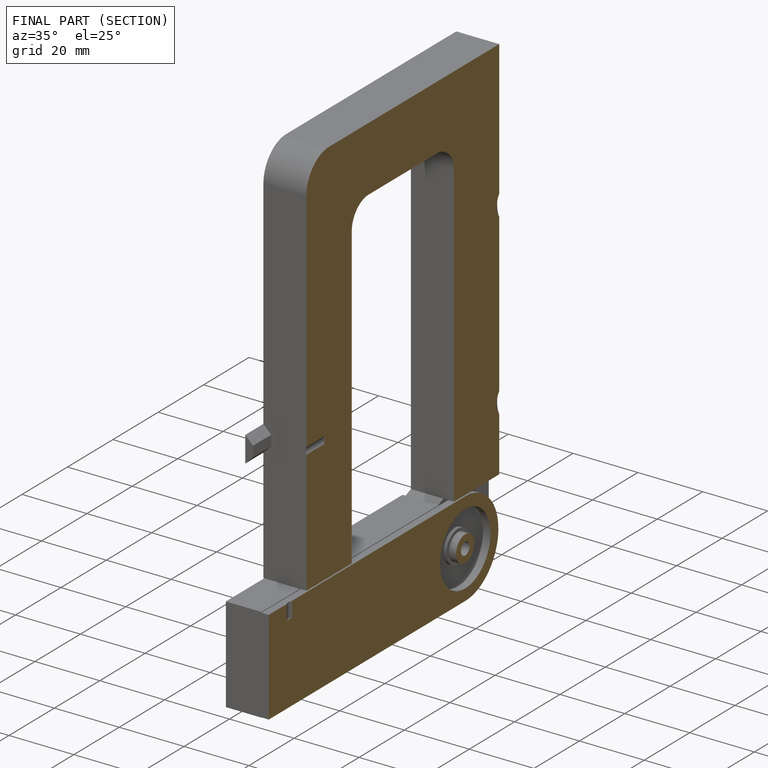
[diagram: finished part — half-section view (interior)]
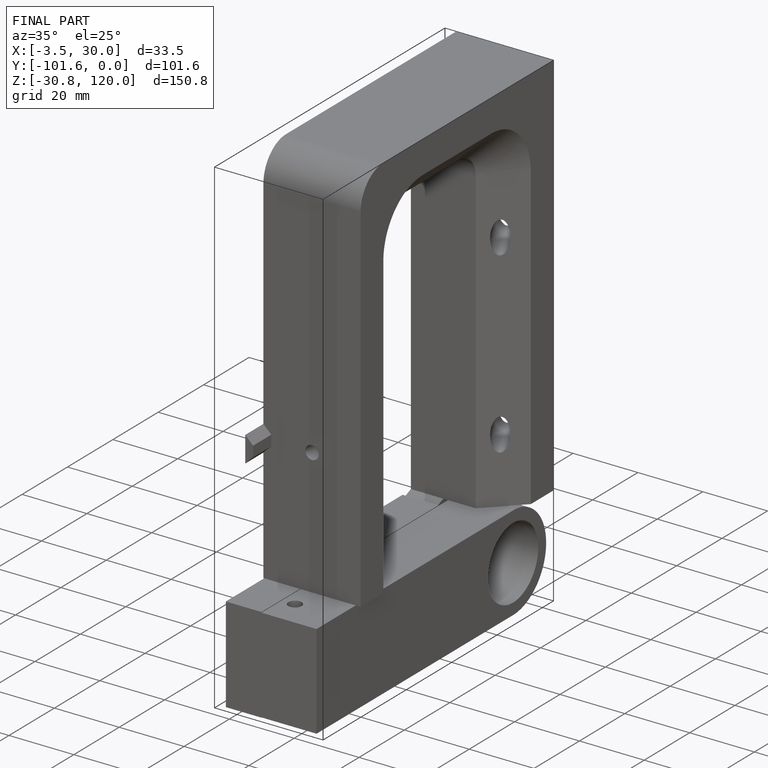
[diagram: finished part — iso view with bounding-box wireframe]
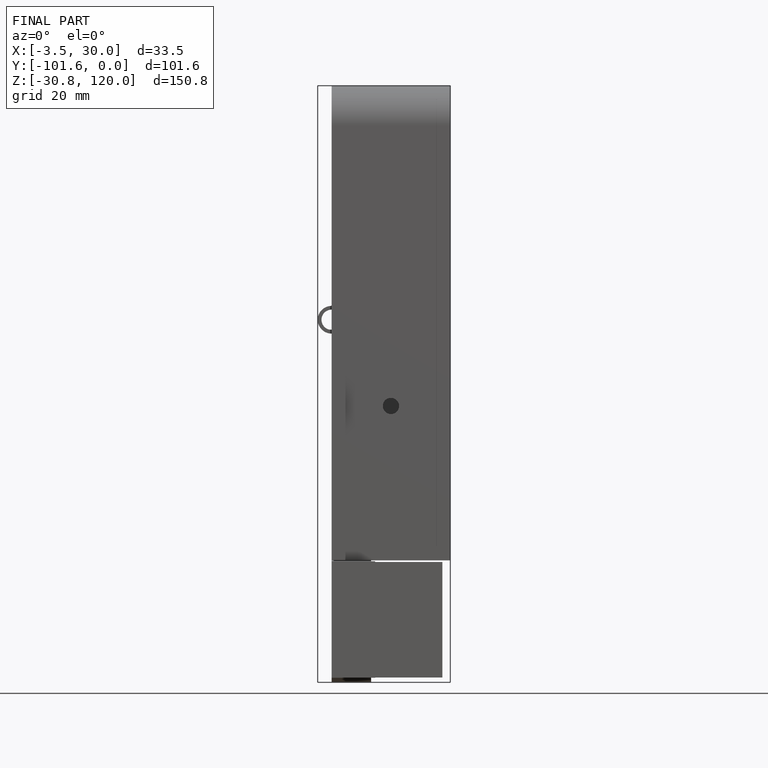
[diagram: finished part — front view with bounding-box wireframe]
